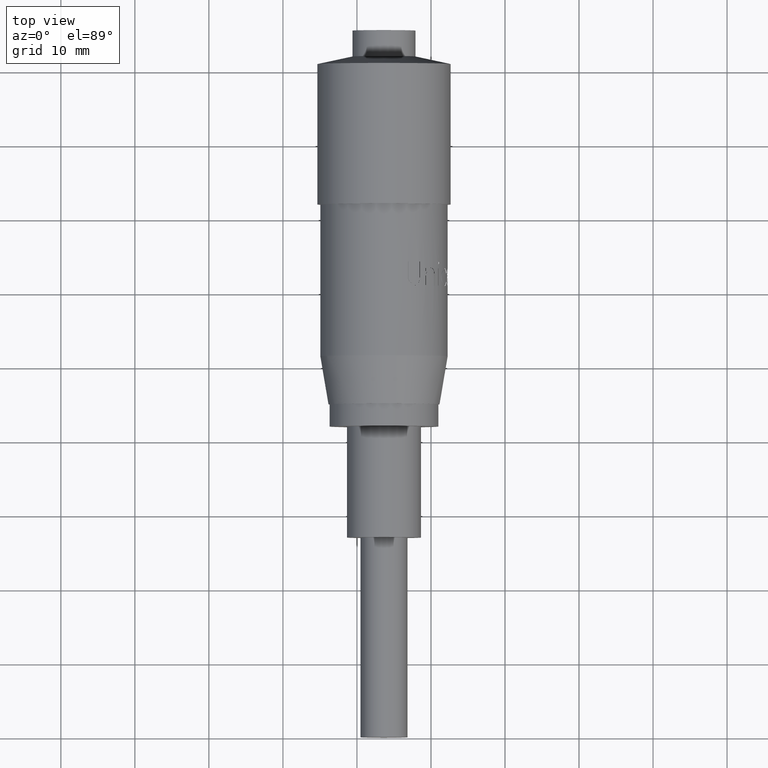
[diagram: clean part render]
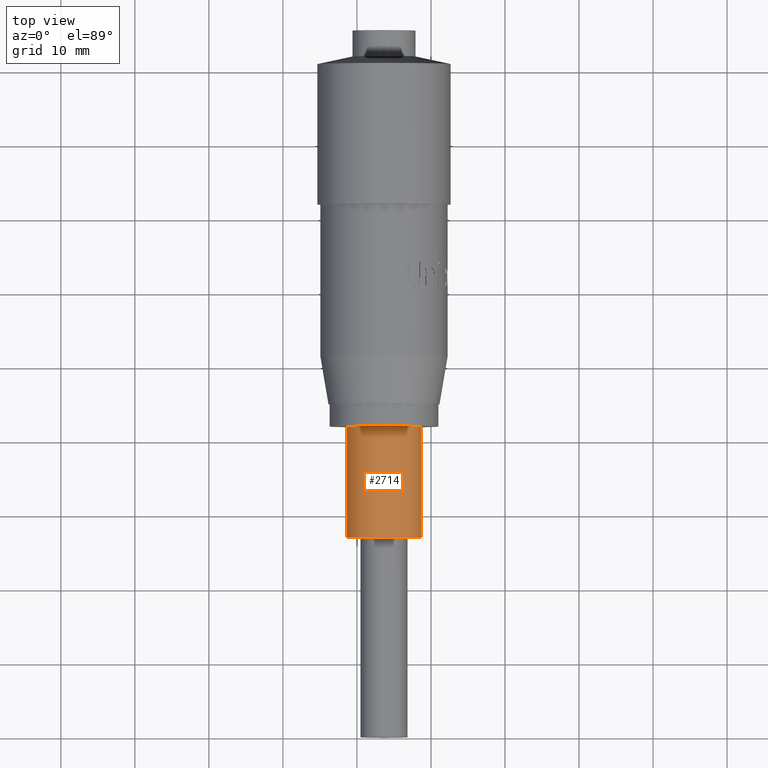
[diagram: same view with one face highlighted and labeled with its STEP entity id]
A machine part, top view. The second image highlights one B-rep face of the part: STEP entity #2714.
In plain terms, the highlighted cylindrical surface (partial cylindrical patch) has radius 5 mm, axis along (-0, 1, -0).
Its self-contained STEP definition (entity closure, byte-faithful):
#87 = CIRCLE ( 'NONE', #1177, 4.999999999999997300 ) ;
#458 = CARTESIAN_POINT ( 'NONE',  ( 38.65296289245996100, 68.06720585310775100, 28.87709965591409000 ) ) ;
#478 = CARTESIAN_POINT ( 'NONE',  ( 28.65296289245997100, 12.02618278390013300, 28.87709965591409000 ) ) ;
#716 = EDGE_CURVE ( 'NONE', #9553, #7789, #8278, .T. ) ;
#1177 = AXIS2_PLACEMENT_3D ( 'NONE', #8980, #3679, #9876 ) ;
#1726 = CARTESIAN_POINT ( 'NONE',  ( 33.65296289245996100, 68.06720585310775100, 28.87709965591409000 ) ) ;
#2041 = CARTESIAN_POINT ( 'NONE',  ( 33.65296289245996800, 12.02618278390013300, 28.87709965591409000 ) ) ;
#2377 = ORIENTED_EDGE ( 'NONE', *, *, #716, .F. ) ;
#2492 = VERTEX_POINT ( 'NONE', #5704 ) ;
#2603 = LINE ( 'NONE', #9658, #4942 ) ;
#2714 = ADVANCED_FACE ( 'NONE', ( #10461 ), #4631, .T. ) ;
#2936 = DIRECTION ( 'NONE',  ( -1.000000000000000000, 0.0000000000000000000, 0.0000000000000000000 ) ) ;
#2995 = EDGE_CURVE ( 'NONE', #2492, #9548, #87, .T. ) ;
#3170 = AXIS2_PLACEMENT_3D ( 'NONE', #1726, #5232, #7047 ) ;
#3475 = DIRECTION ( 'NONE',  ( -1.058937486943297600E-016, 1.000000000000000000, -0.0000000000000000000 ) ) ;
#3679 = DIRECTION ( 'NONE',  ( -1.058937486943297600E-016, 1.000000000000000000, -0.0000000000000000000 ) ) ;
#4164 = AXIS2_PLACEMENT_3D ( 'NONE', #2041, #8229, #2936 ) ;
#4314 = VECTOR ( 'NONE', #11041, 1000.000000000000000 ) ;
#4576 = EDGE_LOOP ( 'NONE', ( #6123, #5012, #2377, #4825 ) ) ;
#4631 = CYLINDRICAL_SURFACE ( 'NONE', #3170, 4.999999999999997300 ) ;
#4825 = ORIENTED_EDGE ( 'NONE', *, *, #6383, .F. ) ;
#4942 = VECTOR ( 'NONE', #3475, 1000.000000000000000 ) ;
#5012 = ORIENTED_EDGE ( 'NONE', *, *, #8787, .T. ) ;
#5232 = DIRECTION ( 'NONE',  ( -1.058937486943297600E-016, 1.000000000000000000, -0.0000000000000000000 ) ) ;
#5704 = CARTESIAN_POINT ( 'NONE',  ( 28.65296289245997100, -2.973817216099867700, 28.87709965591409000 ) ) ;
#5752 = CARTESIAN_POINT ( 'NONE',  ( 38.65296289245996800, -2.973817216099866800, 28.87709965591409000 ) ) ;
#6123 = ORIENTED_EDGE ( 'NONE', *, *, #2995, .T. ) ;
#6383 = EDGE_CURVE ( 'NONE', #2492, #9553, #2603, .T. ) ;
#7047 = DIRECTION ( 'NONE',  ( -1.000000000000000000, 0.0000000000000000000, 0.0000000000000000000 ) ) ;
#7582 = CARTESIAN_POINT ( 'NONE',  ( 38.65296289245996800, 12.02618278390013300, 28.87709965591409000 ) ) ;
#7789 = VERTEX_POINT ( 'NONE', #7582 ) ;
#8229 = DIRECTION ( 'NONE',  ( -1.058937486943297600E-016, 1.000000000000000000, -0.0000000000000000000 ) ) ;
#8278 = CIRCLE ( 'NONE', #4164, 4.999999999999997300 ) ;
#8787 = EDGE_CURVE ( 'NONE', #9548, #7789, #9005, .T. ) ;
#8980 = CARTESIAN_POINT ( 'NONE',  ( 33.65296289245996800, -2.973817216099867300, 28.87709965591409000 ) ) ;
#9005 = LINE ( 'NONE', #458, #4314 ) ;
#9548 = VERTEX_POINT ( 'NONE', #5752 ) ;
#9553 = VERTEX_POINT ( 'NONE', #478 ) ;
#9658 = CARTESIAN_POINT ( 'NONE',  ( 28.65296289245996400, 68.06720585310775100, 28.87709965591409000 ) ) ;
#9876 = DIRECTION ( 'NONE',  ( -1.000000000000000000, -8.673617379884040400E-017, 0.0000000000000000000 ) ) ;
#10461 = FACE_OUTER_BOUND ( 'NONE', #4576, .T. ) ;
#11041 = DIRECTION ( 'NONE',  ( -1.058937486943297600E-016, 1.000000000000000000, -0.0000000000000000000 ) ) ;